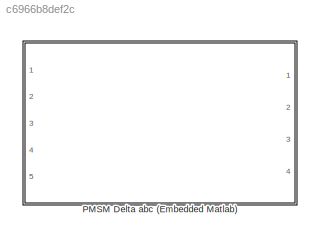
MODEL slx_c6966b8def2c
KIND library
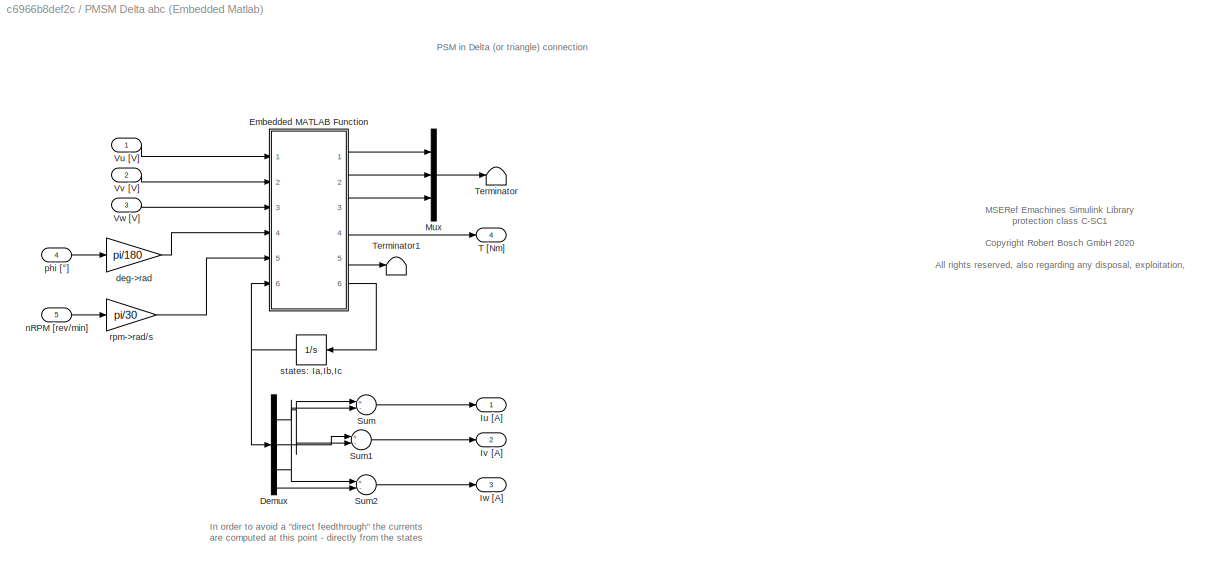
BLOCK [SubSystem] PMSM Delta abc (Embedded Matlab)
  AttributesFormatString = <%<Tag>>
  Ports = [5, 4]
  RequestExecContextInheritance = off
  Tag = EMPSMD3E01MSEREF
BLOCK [Demux] PMSM Delta abc (Embedded Matlab)/Demux
  DisplayOption = bar
  Outputs = 3
  Ports = [1, 3]
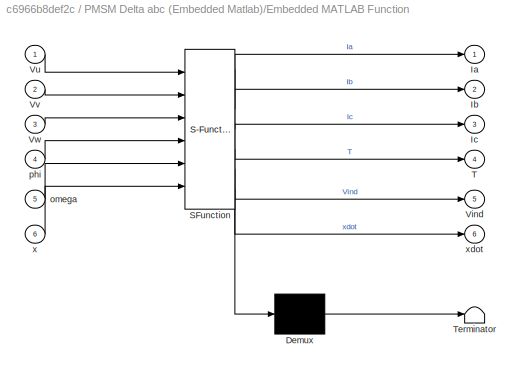
BLOCK [SubSystem] PMSM Delta abc (Embedded Matlab)/Embedded MATLAB Function
  ErrorFcn = Stateflow.Translate.translate
  PermitHierarchicalResolution = ExplicitOnly
  Ports = [6, 6]
  RequestExecContextInheritance = off
  SFBlockType = MATLAB Function
  TreatAsAtomicUnit = on
BLOCK [Demux] PMSM Delta abc (Embedded Matlab)/Embedded MATLAB Function/ Demux 
  Outputs = 1
  Ports = [1, 1]
BLOCK [S-Function] PMSM Delta abc (Embedded Matlab)/Embedded MATLAB Function/ SFunction 
  EnableBusSupport = off
  FunctionName = sf_sfun
  Parameters = Km,N,a357,l,m,r_m
  PortCounts = [6 7]
  Ports = [6, 7]
  Tag = Stateflow S-Function EMPSMD3E01MSEREF 3
BLOCK [Terminator] PMSM Delta abc (Embedded Matlab)/Embedded MATLAB Function/ Terminator 
BLOCK [Outport] PMSM Delta abc (Embedded Matlab)/Embedded MATLAB Function/Ia
  IconDisplay = Port number
BLOCK [Outport] PMSM Delta abc (Embedded Matlab)/Embedded MATLAB Function/Ib
  IconDisplay = Port number
  Port = 2
BLOCK [Outport] PMSM Delta abc (Embedded Matlab)/Embedded MATLAB Function/Ic
  IconDisplay = Port number
  Port = 3
BLOCK [Outport] PMSM Delta abc (Embedded Matlab)/Embedded MATLAB Function/T
  IconDisplay = Port number
  Port = 4
BLOCK [Outport] PMSM Delta abc (Embedded Matlab)/Embedded MATLAB Function/Vind
  IconDisplay = Port number
  Port = 5
BLOCK [Inport] PMSM Delta abc (Embedded Matlab)/Embedded MATLAB Function/Vu
  IconDisplay = Port number
BLOCK [Inport] PMSM Delta abc (Embedded Matlab)/Embedded MATLAB Function/Vv
  IconDisplay = Port number
  Port = 2
BLOCK [Inport] PMSM Delta abc (Embedded Matlab)/Embedded MATLAB Function/Vw
  IconDisplay = Port number
  Port = 3
BLOCK [Inport] PMSM Delta abc (Embedded Matlab)/Embedded MATLAB Function/omega
  IconDisplay = Port number
  Port = 5
BLOCK [Inport] PMSM Delta abc (Embedded Matlab)/Embedded MATLAB Function/phi
  IconDisplay = Port number
  Port = 4
BLOCK [Inport] PMSM Delta abc (Embedded Matlab)/Embedded MATLAB Function/x
  IconDisplay = Port number
  Port = 6
BLOCK [Outport] PMSM Delta abc (Embedded Matlab)/Embedded MATLAB Function/xdot
  IconDisplay = Port number
  Port = 6
BLOCK [Outport] PMSM Delta abc (Embedded Matlab)/Iu [A]
  IconDisplay = Port number
BLOCK [Outport] PMSM Delta abc (Embedded Matlab)/Iv [A]
  IconDisplay = Port number
  Port = 2
BLOCK [Outport] PMSM Delta abc (Embedded Matlab)/Iw [A]
  IconDisplay = Port number
  Port = 3
BLOCK [Mux] PMSM Delta abc (Embedded Matlab)/Mux
  DisplayOption = bar
  Inputs = 3
  Ports = [3, 1]
BLOCK [Sum] PMSM Delta abc (Embedded Matlab)/Sum
  InputSameDT = off
  Inputs = +-
  OutDataTypeStr = Inherit: Inherit via internal rule
  Ports = [2, 1]
  SaturateOnIntegerOverflow = off
BLOCK [Sum] PMSM Delta abc (Embedded Matlab)/Sum1
  InputSameDT = off
  Inputs = +-
  OutDataTypeStr = Inherit: Inherit via internal rule
  Ports = [2, 1]
  SaturateOnIntegerOverflow = off
BLOCK [Sum] PMSM Delta abc (Embedded Matlab)/Sum2
  InputSameDT = off
  Inputs = +-
  OutDataTypeStr = Inherit: Inherit via internal rule
  Ports = [2, 1]
  SaturateOnIntegerOverflow = off
BLOCK [Outport] PMSM Delta abc (Embedded Matlab)/T [Nm]
  IconDisplay = Port number
  Port = 4
BLOCK [Terminator] PMSM Delta abc (Embedded Matlab)/Terminator
BLOCK [Terminator] PMSM Delta abc (Embedded Matlab)/Terminator1
BLOCK [Inport] PMSM Delta abc (Embedded Matlab)/Vu [V]
  IconDisplay = Port number
BLOCK [Inport] PMSM Delta abc (Embedded Matlab)/Vv [V]
  IconDisplay = Port number
  Port = 2
BLOCK [Inport] PMSM Delta abc (Embedded Matlab)/Vw [V]
  IconDisplay = Port number
  Port = 3
BLOCK [Gain] PMSM Delta abc (Embedded Matlab)/deg->rad
  Gain = pi/180
  OutDataTypeStr = Inherit: Inherit via internal rule
  ParamDataTypeStr = Inherit: Inherit via internal rule
  SaturateOnIntegerOverflow = off
BLOCK [Inport] PMSM Delta abc (Embedded Matlab)/nRPM [rev//min]
  IconDisplay = Port number
  Port = 5
BLOCK [Inport] PMSM Delta abc (Embedded Matlab)/phi [°]
  IconDisplay = Port number
  Port = 4
BLOCK [Gain] PMSM Delta abc (Embedded Matlab)/rpm->rad//s
  Gain = pi/30
  OutDataTypeStr = Inherit: Inherit via internal rule
  ParamDataTypeStr = Inherit: Inherit via internal rule
  SaturateOnIntegerOverflow = off
BLOCK [Integrator] PMSM Delta abc (Embedded Matlab)/states:  Ia,Ib,Ic
  InitialCondition = [xIainit xIbinit xIcinit]
  Ports = [1, 1]
ANNOTATION PMSM Delta abc (Embedded Matlab): In order to avoid a "direct feedthrough" the currents are computed at this point - directly from the states
ANNOTATION PMSM Delta abc (Embedded Matlab): MSERef Emachines Simulink Library protection class C-SC1 <copyright redacted>
ANNOTATION PMSM Delta abc (Embedded Matlab): PSM in Delta (or triangle) connection
NET PMSM Delta abc (Embedded Matlab)/Demux:1 -> PMSM Delta abc (Embedded Matlab)/Sum1:2, PMSM Delta abc (Embedded Matlab)/Sum:1
NET PMSM Delta abc (Embedded Matlab)/Demux:2 -> PMSM Delta abc (Embedded Matlab)/Sum1:1, PMSM Delta abc (Embedded Matlab)/Sum2:2
NET PMSM Delta abc (Embedded Matlab)/Demux:3 -> PMSM Delta abc (Embedded Matlab)/Sum2:1, PMSM Delta abc (Embedded Matlab)/Sum:2
LINE PMSM Delta abc (Embedded Matlab)/Embedded MATLAB Function:1 -> PMSM Delta abc (Embedded Matlab)/Mux:1
LINE PMSM Delta abc (Embedded Matlab)/Embedded MATLAB Function:2 -> PMSM Delta abc (Embedded Matlab)/Mux:2
LINE PMSM Delta abc (Embedded Matlab)/Embedded MATLAB Function:3 -> PMSM Delta abc (Embedded Matlab)/Mux:3
LINE PMSM Delta abc (Embedded Matlab)/Embedded MATLAB Function:4 -> PMSM Delta abc (Embedded Matlab)/T [Nm]:1
LINE PMSM Delta abc (Embedded Matlab)/Embedded MATLAB Function:5 -> PMSM Delta abc (Embedded Matlab)/Terminator1:1
LINE PMSM Delta abc (Embedded Matlab)/Embedded MATLAB Function:6 -> PMSM Delta abc (Embedded Matlab)/states:  Ia,Ib,Ic:1
LINE PMSM Delta abc (Embedded Matlab)/Mux:1 -> PMSM Delta abc (Embedded Matlab)/Terminator:1
LINE PMSM Delta abc (Embedded Matlab)/Sum1:1 -> PMSM Delta abc (Embedded Matlab)/Iv [A]:1
LINE PMSM Delta abc (Embedded Matlab)/Sum2:1 -> PMSM Delta abc (Embedded Matlab)/Iw [A]:1
LINE PMSM Delta abc (Embedded Matlab)/Sum:1 -> PMSM Delta abc (Embedded Matlab)/Iu [A]:1
LINE PMSM Delta abc (Embedded Matlab)/Vu [V]:1 -> PMSM Delta abc (Embedded Matlab)/Embedded MATLAB Function:1
LINE PMSM Delta abc (Embedded Matlab)/Vv [V]:1 -> PMSM Delta abc (Embedded Matlab)/Embedded MATLAB Function:2
LINE PMSM Delta abc (Embedded Matlab)/Vw [V]:1 -> PMSM Delta abc (Embedded Matlab)/Embedded MATLAB Function:3
LINE PMSM Delta abc (Embedded Matlab)/deg->rad:1 -> PMSM Delta abc (Embedded Matlab)/Embedded MATLAB Function:4
LINE PMSM Delta abc (Embedded Matlab)/nRPM [rev//min]:1 -> PMSM Delta abc (Embedded Matlab)/rpm->rad//s:1
LINE PMSM Delta abc (Embedded Matlab)/phi [°]:1 -> PMSM Delta abc (Embedded Matlab)/deg->rad:1
LINE PMSM Delta abc (Embedded Matlab)/rpm->rad//s:1 -> PMSM Delta abc (Embedded Matlab)/Embedded MATLAB Function:5
NET PMSM Delta abc (Embedded Matlab)/states:  Ia,Ib,Ic:1 -> PMSM Delta abc (Embedded Matlab)/Demux:1, PMSM Delta abc (Embedded Matlab)/Embedded MATLAB Function:6
note: NET lines group one-source signal fan-out (src -> all destinations, sorted); 1:1 wires keep LINE
CHART PMSM Delta abc (Embedded Matlab)/Embedded
MATLAB Function states=1 transitions=1
  STATE_LABEL 'eML_blk_kernel()'
  STATE_LABEL 'SCRIPT:\nfunction [Ia, Ib, Ic, T,Vind,xdot ] = fcn(Vu,Vv,Vw, phi, omega, Km, a357,N, l, m,r_m, x)\n\n% MSE Reference Model Library\n% \n% This template is created by:                                                 \n% ROBERT BOSCH GmbH, Stuttgart, Germany, Dept. CR/AEH3\n%                                                                              \n% Robert Bosch Proprietary \n% \n% All rights reserved, ...<+2249ch>'
